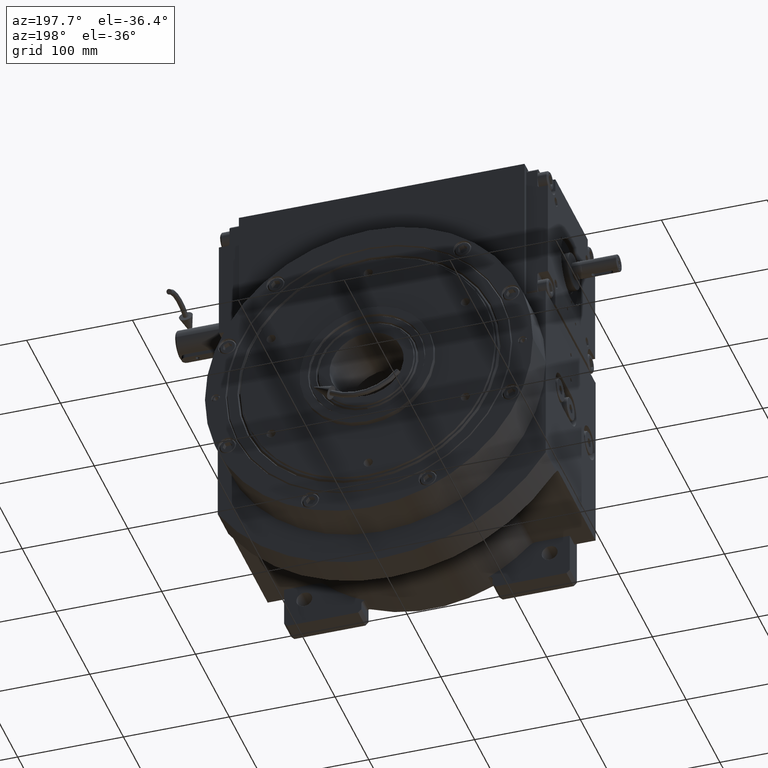
[diagram: clean part render]
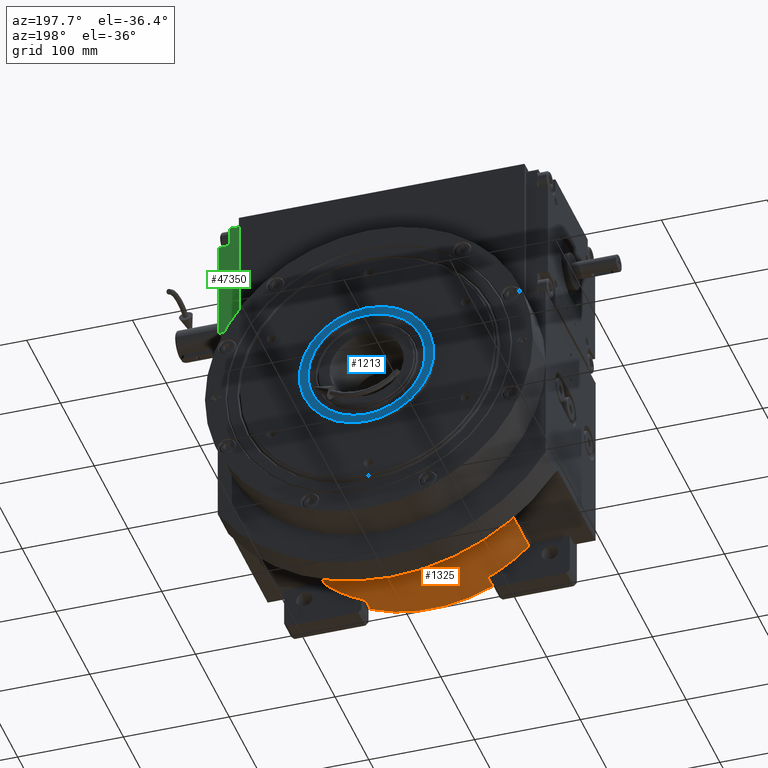
[diagram: same view with three faces highlighted in distinct colors, each labeled with its STEP entity id]
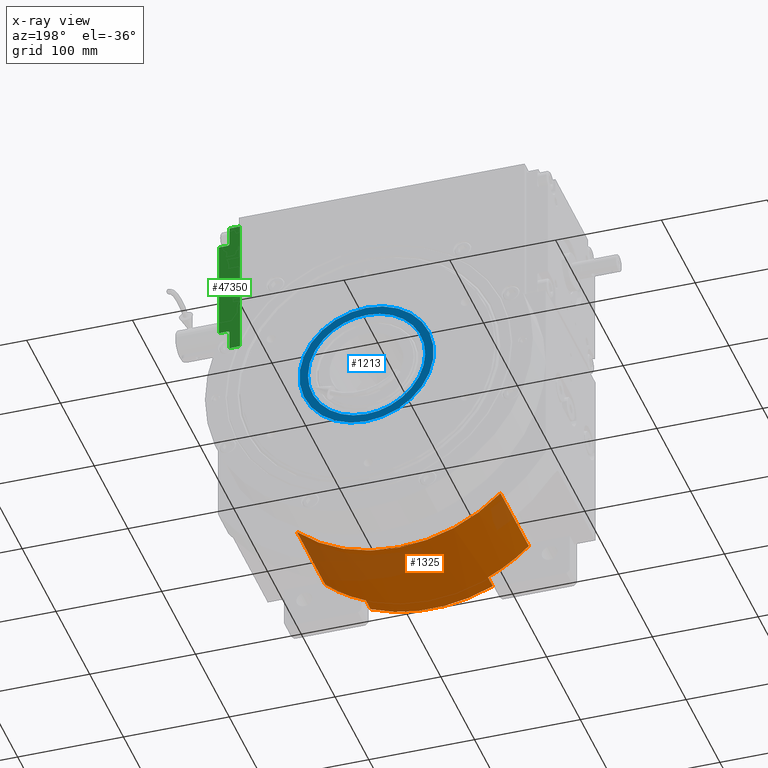
[diagram: x-ray of the same camera — body ghosted, the three highlighted faces saturated]
A machine part, auxiliary view with three faces highlighted in distinct colors.
The next image is the same camera in x-ray (body ghosted, the three faces saturated) — at least one of them is partly hidden behind the body in this view.
Their STEP definitions:

[orange] entity #1325 — the highlighted cylindrical surface (partial cylindrical patch) has radius 138 mm, axis along (0, 1, 0).
#901 = CARTESIAN_POINT ( 'NONE',  ( 57.74468085106380499, -59.00000000000000000, -125.3377510306004012 ) ) ;
#1325 = ADVANCED_FACE ( 'NONE', ( #18345 ), #40439, .T. ) ;
#1531 = VERTEX_POINT ( 'NONE', #27749 ) ;
#1709 = EDGE_CURVE ( 'NONE', #38155, #33868, #60426, .T. ) ;
#3925 = ORIENTED_EDGE ( 'NONE', *, *, #48803, .T. ) ;
#4744 = DIRECTION ( 'NONE',  ( -0.4184397163120575636, 0.000000000000000000, -0.9082445726855100654 ) ) ;
#5033 = EDGE_CURVE ( 'NONE', #38155, #6567, #31467, .T. ) ;
#6348 = DIRECTION ( 'NONE',  ( 0.6978784504689377055, 0.000000000000000000, -0.7162162162162165613 ) ) ;
#6567 = VERTEX_POINT ( 'NONE', #59780 ) ;
#8822 = CIRCLE ( 'NONE', #25646, 138.0000000000000853 ) ;
#9293 = DIRECTION ( 'NONE',  ( -0.4184397163120575636, 0.000000000000000000, -0.9082445726855100654 ) ) ;
#9538 = CARTESIAN_POINT ( 'NONE',  ( -57.74468085106390447, -73.00000000000000000, -125.3377510306004012 ) ) ;
#9870 = AXIS2_PLACEMENT_3D ( 'NONE', #67586, #19801, #9293 ) ;
#10521 = VERTEX_POINT ( 'NONE', #45182 ) ;
#12236 = VECTOR ( 'NONE', #29397, 1000.000000000000000 ) ;
#12359 = AXIS2_PLACEMENT_3D ( 'NONE', #64116, #48243, #4744 ) ;
#13239 = CARTESIAN_POINT ( 'NONE',  ( 57.74468085106380499, -73.00000000000000000, -125.3377510306004012 ) ) ;
#13350 = DIRECTION ( 'NONE',  ( 0.000000000000000000, -1.000000000000000000, 0.000000000000000000 ) ) ;
#13422 = EDGE_CURVE ( 'NONE', #33868, #66414, #40113, .T. ) ;
#14169 = EDGE_CURVE ( 'NONE', #1531, #32342, #8822, .T. ) ;
#15180 = ORIENTED_EDGE ( 'NONE', *, *, #5033, .T. ) ;
#15951 = LINE ( 'NONE', #42610, #64228 ) ;
#16155 = AXIS2_PLACEMENT_3D ( 'NONE', #54780, #53719, #6348 ) ;
#16301 = VERTEX_POINT ( 'NONE', #901 ) ;
#16316 = ORIENTED_EDGE ( 'NONE', *, *, #60955, .F. ) ;
#18345 = FACE_OUTER_BOUND ( 'NONE', #21307, .T. ) ;
#19600 = AXIS2_PLACEMENT_3D ( 'NONE', #39756, #61207, #61898 ) ;
#19801 = DIRECTION ( 'NONE',  ( 0.000000000000000000, -1.000000000000000000, 0.000000000000000000 ) ) ;
#20906 = ORIENTED_EDGE ( 'NONE', *, *, #53263, .T. ) ;
#21205 = CARTESIAN_POINT ( 'NONE',  ( -57.74468085106390447, -59.00000000000000000, -125.3377510306004012 ) ) ;
#21307 = EDGE_LOOP ( 'NONE', ( #20906, #16316, #39199, #37422, #15180, #3925, #42039, #46159 ) ) ;
#25646 = AXIS2_PLACEMENT_3D ( 'NONE', #38299, #28107, #59372 ) ;
#27749 = CARTESIAN_POINT ( 'NONE',  ( -96.30722393658518854, 24.99999992571344976, -98.83796549704690904 ) ) ;
#28107 = DIRECTION ( 'NONE',  ( -6.789570679155330615E-15, -1.000000000000000000, 2.340198913247644897E-14 ) ) ;
#29397 = DIRECTION ( 'NONE',  ( 0.000000000000000000, 1.000000000000000000, 0.000000000000000000 ) ) ;
#31467 = CIRCLE ( 'NONE', #12359, 138.0000000000000000 ) ;
#32342 = VERTEX_POINT ( 'NONE', #59530 ) ;
#33868 = VERTEX_POINT ( 'NONE', #9538 ) ;
#35340 = DIRECTION ( 'NONE',  ( 0.000000000000000000, 1.000000000000000000, 0.000000000000000000 ) ) ;
#37422 = ORIENTED_EDGE ( 'NONE', *, *, #1709, .F. ) ;
#38058 = DIRECTION ( 'NONE',  ( 0.000000000000000000, 1.000000000000000000, 0.000000000000000000 ) ) ;
#38155 = VERTEX_POINT ( 'NONE', #21205 ) ;
#38299 = CARTESIAN_POINT ( 'NONE',  ( -1.421085471520200056E-14, 25.00000000000330047, 8.526512829121199706E-14 ) ) ;
#39199 = ORIENTED_EDGE ( 'NONE', *, *, #13422, .F. ) ;
#39460 = EDGE_CURVE ( 'NONE', #10521, #32342, #15951, .T. ) ;
#39756 = CARTESIAN_POINT ( 'NONE',  ( -2.057655180072804513E-28, -73.00000000000000000, 0.000000000000000000 ) ) ;
#40113 = CIRCLE ( 'NONE', #9870, 138.0000000000000000 ) ;
#40246 = CARTESIAN_POINT ( 'NONE',  ( -96.30722616471349795, -59.00000000000000000, -98.83783783783779597 ) ) ;
#40439 = CYLINDRICAL_SURFACE ( 'NONE', #19600, 138.0000000000000000 ) ;
#42039 = ORIENTED_EDGE ( 'NONE', *, *, #14169, .T. ) ;
#42610 = CARTESIAN_POINT ( 'NONE',  ( 96.30722616471349795, -59.00000000000000000, -98.83783783783789545 ) ) ;
#45182 = CARTESIAN_POINT ( 'NONE',  ( 96.30722616471339848, -59.00000000000000000, -98.83783783783789545 ) ) ;
#45497 = LINE ( 'NONE', #40246, #46845 ) ;
#46159 = ORIENTED_EDGE ( 'NONE', *, *, #39460, .F. ) ;
#46845 = VECTOR ( 'NONE', #35340, 1000.000000000000000 ) ;
#48243 = DIRECTION ( 'NONE',  ( 0.000000000000000000, 1.000000000000000000, 0.000000000000000000 ) ) ;
#48803 = EDGE_CURVE ( 'NONE', #6567, #1531, #45497, .T. ) ;
#50333 = VECTOR ( 'NONE', #13350, 1000.000000000000000 ) ;
#53263 = EDGE_CURVE ( 'NONE', #10521, #16301, #68860, .T. ) ;
#53719 = DIRECTION ( 'NONE',  ( 0.000000000000000000, 1.000000000000000000, 0.000000000000000000 ) ) ;
#54780 = CARTESIAN_POINT ( 'NONE',  ( 1.421085471520199867E-13, -59.00000000000000000, -2.700062395888380201E-13 ) ) ;
#55745 = LINE ( 'NONE', #13239, #12236 ) ;
#59372 = DIRECTION ( 'NONE',  ( -0.6978784504689377055, -1.201735973212917754E-14, -0.7162162162162165613 ) ) ;
#59530 = CARTESIAN_POINT ( 'NONE',  ( 96.30723760260589472, 24.99999990761120117, -98.83797943607669367 ) ) ;
#59780 = CARTESIAN_POINT ( 'NONE',  ( -96.30722616471359743, -59.00000000000000000, -98.83783783783779597 ) ) ;
#60426 = LINE ( 'NONE', #61817, #50333 ) ;
#60955 = EDGE_CURVE ( 'NONE', #66414, #16301, #55745, .T. ) ;
#61207 = DIRECTION ( 'NONE',  ( 0.000000000000000000, 1.000000000000000000, 0.000000000000000000 ) ) ;
#61817 = CARTESIAN_POINT ( 'NONE',  ( -57.74468085106390447, -59.00000000000000000, -125.3377510306004012 ) ) ;
#61898 = DIRECTION ( 'NONE',  ( 0.000000000000000000, 0.000000000000000000, 1.000000000000000000 ) ) ;
#64116 = CARTESIAN_POINT ( 'NONE',  ( 5.542233338928780440E-13, -59.00000000000000000, 9.237055564881300397E-13 ) ) ;
#64228 = VECTOR ( 'NONE', #38058, 1000.000000000000000 ) ;
#66414 = VERTEX_POINT ( 'NONE', #68158 ) ;
#67586 = CARTESIAN_POINT ( 'NONE',  ( 0.000000000000000000, -73.00000000000000000, -1.705302565824239941E-13 ) ) ;
#68158 = CARTESIAN_POINT ( 'NONE',  ( 57.74468085106380499, -73.00000000000000000, -125.3377510306004012 ) ) ;
#68860 = CIRCLE ( 'NONE', #16155, 138.0000000000000853 ) ;

[blue] entity #1213 — the highlighted planar face has unit normal (-0, -1, 0).
#222 = AXIS2_PLACEMENT_3D ( 'NONE', #31164, #43042, #32189 ) ;
#247 = CARTESIAN_POINT ( 'NONE',  ( -49.71447936410482527, 137.5000000000000000, 24.51920318662490317 ) ) ;
#310 = CARTESIAN_POINT ( 'NONE',  ( -49.71477893813901971, 137.4999999999999147, -24.51866969727153034 ) ) ;
#598 = CARTESIAN_POINT ( 'NONE',  ( -54.00781687136672815, 137.4999999999999716, 12.36261859440248223 ) ) ;
#1213 = ADVANCED_FACE ( 'NONE', ( #34491, #55925 ), #7472, .F. ) ;
#1765 = VERTEX_POINT ( 'NONE', #34091 ) ;
#2312 = CARTESIAN_POINT ( 'NONE',  ( 3.628375997638928929, 137.4999999999999147, -55.31313381398919660 ) ) ;
#3010 = CARTESIAN_POINT ( 'NONE',  ( 27.75497598687837097, 137.4999999999999147, -48.08607127958408967 ) ) ;
#3078 = ORIENTED_EDGE ( 'NONE', *, *, #26259, .F. ) ;
#3147 = VERTEX_POINT ( 'NONE', #50846 ) ;
#3215 = DIRECTION ( 'NONE',  ( -1.000000000000000000, -8.710209203205549437E-16, -6.328271240363314972E-15 ) ) ;
#4151 = CARTESIAN_POINT ( 'NONE',  ( 53.62664304321267394, 137.5000000000001137, 14.37822157026970693 ) ) ;
#4400 = CARTESIAN_POINT ( 'NONE',  ( -27.75542257747211394, 137.4999999999998863, -48.08588635518135845 ) ) ;
#4497 = CARTESIAN_POINT ( 'NONE',  ( -53.64091891798686618, 137.4999999999999716, 13.90860157112367013 ) ) ;
#4842 = CARTESIAN_POINT ( 'NONE',  ( -3.628357895716744164, 137.5000000000001421, 55.31313501169095304 ) ) ;
#5188 = CARTESIAN_POINT ( 'NONE',  ( 48.00825865112236812, 137.5000000000001421, 27.71108241476838430 ) ) ;
#5532 = CARTESIAN_POINT ( 'NONE',  ( -27.75496495380834361, 137.5000000000001137, 48.08607772249040835 ) ) ;
#5601 = CARTESIAN_POINT ( 'NONE',  ( -54.42446631308201432, 137.4999999999998863, -10.36125648274953193 ) ) ;
#5617 = EDGE_CURVE ( 'NONE', #23140, #60522, #24716, .T. ) ;
#6028 = EDGE_LOOP ( 'NONE', ( #3078, #38611 ) ) ;
#6667 = CARTESIAN_POINT ( 'NONE',  ( -54.50717790105813521, 137.4999999999998863, -9.917133072142101824 ) ) ;
#7142 = CARTESIAN_POINT ( 'NONE',  ( 1.702895640115161849E-13, 137.5000000000000000, -2.900457651833202277E-13 ) ) ;
#7472 = PLANE ( 'NONE',  #58665 ) ;
#7964 = CARTESIAN_POINT ( 'NONE',  ( 9.025197798292850848, 137.4999999999998863, -54.69193561486415689 ) ) ;
#8322 = CARTESIAN_POINT ( 'NONE',  ( 49.71448179410049306, 137.5000000000000284, -24.51919822925671610 ) ) ;
#8659 = CARTESIAN_POINT ( 'NONE',  ( 50.48945352261363695, 137.5000000000000284, -22.88022166407546010 ) ) ;
#8869 = B_SPLINE_CURVE_WITH_KNOTS ( 'NONE', 3,
 ( #67650, #29726, #2312, #45495, #7964, #56420, #9000, #61348, #3010, #66950, #67998, #19516, #61699, #34981, #14263, #8322, #8659, #51123, #35674, #24438, #19164, #46528, #57101, #30416, #51814, #19859, #61009 ),
 .UNSPECIFIED., .F., .F.,
 ( 4, 2, 2, 2, 2, 2, 2, 2, 2, 1, 1, 1, 2, 2, 4 ),
 ( 0.5000001088899543866, 0.5312501020843323207, 0.5625000952787101438, 0.6250000816674659010, 0.6875000680562216582, 0.7500000544449774154, 0.8125000408337330615, 0.8437500340281109956, 0.8750000272224889297, 0.9062500204168667528, 0.9218750170140557199, 0.9296875153126502589, 0.9335937644619474174, 0.9375000136112446869, 1.000000000000000000 ),
 .UNSPECIFIED. ) ;
#8995 = CARTESIAN_POINT ( 'NONE',  ( -44.04486251158711951, 137.4999999999999432, -33.80308831572948947 ) ) ;
#9000 = CARTESIAN_POINT ( 'NONE',  ( 17.84122218034780971, 137.4999999999999147, -52.57634488780664128 ) ) ;
#10131 = CARTESIAN_POINT ( 'NONE',  ( 7.240547435327146175, 137.5000000000000853, 55.04692884060045088 ) ) ;
#10472 = CARTESIAN_POINT ( 'NONE',  ( -24.56191109246028503, 137.5000000000001421, 49.79285096909188724 ) ) ;
#11683 = DIRECTION ( 'NONE',  ( 1.000000000000000000, 8.741913579725642299E-16, 6.272322993453074118E-15 ) ) ;
#13525 = EDGE_LOOP ( 'NONE', ( #26154, #53591, #68802 ) ) ;
#13553 = AXIS2_PLACEMENT_3D ( 'NONE', #27106, #43253, #11683 ) ;
#13919 = CARTESIAN_POINT ( 'NONE',  ( -7.240530234497567719, 137.4999999999998863, -55.04693115882573551 ) ) ;
#14263 = CARTESIAN_POINT ( 'NONE',  ( 48.00795346572976285, 137.5000000000000284, -27.71161529101094345 ) ) ;
#15065 = CARTESIAN_POINT ( 'NONE',  ( -1.818429028588070429, 137.5000000000001137, 55.40183371729972350 ) ) ;
#15738 = CARTESIAN_POINT ( 'NONE',  ( 50.48919882109855450, 137.5000000000000853, 22.88095610065697727 ) ) ;
#16157 = CARTESIAN_POINT ( 'NONE',  ( -54.62713457614277957, 137.4999999999999432, -9.250297209391945330 ) ) ;
#16485 = CARTESIAN_POINT ( 'NONE',  ( -52.57591822518406843, 137.4999999999999147, -17.84333457577970350 ) ) ;
#19162 = EDGE_CURVE ( 'NONE', #3147, #67298, #22602, .T. ) ;
#19164 = CARTESIAN_POINT ( 'NONE',  ( 54.00781747661097398, 137.5000000000000568, -12.36261594187621959 ) ) ;
#19516 = CARTESIAN_POINT ( 'NONE',  ( 41.74770190502044898, 137.4999999999999432, -36.60236605458666048 ) ) ;
#19853 = CARTESIAN_POINT ( 'NONE',  ( -36.60387710816653595, 137.4999999999998863, -41.74643778925095461 ) ) ;
#19859 = CARTESIAN_POINT ( 'NONE',  ( 55.39785984290545429, 137.5000000000001137, -3.657470325549919465 ) ) ;
#19958 = CARTESIAN_POINT ( 'NONE',  ( 55.39993398753517795, 137.5000000000000853, 1.828552991367127900 ) ) ;
#21004 = CARTESIAN_POINT ( 'NONE',  ( -48.00795032109144955, 137.5000000000000284, 27.71162076213339986 ) ) ;
#21341 = CARTESIAN_POINT ( 'NONE',  ( -44.04365571943501578, 137.5000000000000568, 33.80477815043025913 ) ) ;
#21687 = CARTESIAN_POINT ( 'NONE',  ( -7.231177290619913656, 137.5000000000000568, 54.95829804417514453 ) ) ;
#22602 = B_SPLINE_CURVE_WITH_KNOTS ( 'NONE', 3,
 ( #37897, #33356, #50767, #54752, #16157, #6667, #5601, #58990, #49458, #16485, #48407, #310, #64621, #59332, #8995, #36377, #19853, #46519, #4400, #31109, #56754, #40571, #13919, #34972, #24783 ),
 .UNSPECIFIED., .F., .F.,
 ( 4, 1, 1, 1, 2, 2, 2, 2, 2, 2, 2, 2, 2, 4 ),
 ( 0.000000000000000000, 0.03125000680562196181, 0.04687501020843295313, 0.05468751190983844185, 0.05859376276054118621, 0.06250001361124395138, 0.1250000272224882081, 0.1562500340281103572, 0.1875000408337325064, 0.2500000544449769158, 0.3125000680562212696, 0.3750000816674656234, 0.4375000952787100328, 0.5000001088899543866 ),
 .UNSPECIFIED. ) ;
#23140 = VERTEX_POINT ( 'NONE', #24303 ) ;
#24303 = CARTESIAN_POINT ( 'NONE',  ( 63.50000000000000000, 137.5000000000000000, 1.143916276379464588E-13 ) ) ;
#24438 = CARTESIAN_POINT ( 'NONE',  ( 53.64091967998441390, 137.5000000000000284, -13.90859860657864466 ) ) ;
#24716 = CIRCLE ( 'NONE', #13553, 63.50000000000000000 ) ;
#24783 = CARTESIAN_POINT ( 'NONE',  ( 8.118262214958745492E-10, 137.5000000000000568, -55.40184876788287482 ) ) ;
#24881 = CARTESIAN_POINT ( 'NONE',  ( 55.26540672301853618, 137.5000000000000568, 4.550558588610561728 ) ) ;
#25564 = CARTESIAN_POINT ( 'NONE',  ( 52.57591946540060235, 137.5000000000001137, 17.84333077393759126 ) ) ;
#25916 = CARTESIAN_POINT ( 'NONE',  ( -52.79566113623379664, 137.5000000000000000, 16.96487068480071159 ) ) ;
#26154 = ORIENTED_EDGE ( 'NONE', *, *, #19162, .T. ) ;
#26259 = EDGE_CURVE ( 'NONE', #23140, #60522, #46243, .T. ) ;
#26270 = CARTESIAN_POINT ( 'NONE',  ( -55.04307220141742363, 137.4999999999999716, 7.259049885477681485 ) ) ;
#26941 = CARTESIAN_POINT ( 'NONE',  ( 27.75543348264031351, 137.5000000000001421, 48.08587999776101185 ) ) ;
#27106 = CARTESIAN_POINT ( 'NONE',  ( 1.734445920220515500E-13, 137.5000000000000000, -2.864930515045197772E-13 ) ) ;
#27289 = CARTESIAN_POINT ( 'NONE',  ( 47.07537269231540478, 137.5000000000001137, 29.26696001001480596 ) ) ;
#28153 = CARTESIAN_POINT ( 'NONE',  ( 8.118262214958745492E-10, 137.5000000000000568, -55.40184876788287482 ) ) ;
#29726 = CARTESIAN_POINT ( 'NONE',  ( 1.818447582202682655, 137.4999999999999147, -55.40183309923884991 ) ) ;
#30416 = CARTESIAN_POINT ( 'NONE',  ( 54.29346688806710119, 137.5000000000000284, -11.02633973190701333 ) ) ;
#30518 = CARTESIAN_POINT ( 'NONE',  ( 54.62713491138917732, 137.5000000000001137, 9.250295221252123667 ) ) ;
#30872 = CARTESIAN_POINT ( 'NONE',  ( 54.50717828839032109, 137.5000000000000568, 9.917130942877028232 ) ) ;
#31109 = CARTESIAN_POINT ( 'NONE',  ( -24.56300829642062666, 137.4999999999998863, -49.79232203002614909 ) ) ;
#31164 = CARTESIAN_POINT ( 'NONE',  ( 1.734445920220531151E-13, 137.5000000000000000, -2.935984788621207286E-13 ) ) ;
#31908 = CARTESIAN_POINT ( 'NONE',  ( -33.80475580821478587, 137.5000000000001137, 44.04363378032424947 ) ) ;
#32189 = DIRECTION ( 'NONE',  ( 1.000000000000000000, 8.741913579725642299E-16, 6.384219487273558193E-15 ) ) ;
#32235 = CARTESIAN_POINT ( 'NONE',  ( -54.29346640797777468, 137.5000000000000284, 11.02634209519381869 ) ) ;
#33356 = CARTESIAN_POINT ( 'NONE',  ( -55.39993398710150529, 137.4999999999999432, -1.828553389551423880 ) ) ;
#34091 = CARTESIAN_POINT ( 'NONE',  ( 55.40191169092590684, 137.5000032402881800, -3.669737571491428942E-07 ) ) ;
#34491 = FACE_BOUND ( 'NONE', #13525, .T. ) ;
#34972 = CARTESIAN_POINT ( 'NONE',  ( -3.636896746055633844, 137.4999999999998863, -55.40177173643561304 ) ) ;
#34981 = CARTESIAN_POINT ( 'NONE',  ( 47.07594126219621700, 137.4999999999999432, -29.26615558819080931 ) ) ;
#35674 = CARTESIAN_POINT ( 'NONE',  ( 52.79566226030760134, 137.5000000000000853, -16.96486711170939543 ) ) ;
#36377 = CARTESIAN_POINT ( 'NONE',  ( -41.74665140230730742, 137.4999999999999147, -36.60326996764378293 ) ) ;
#36477 = CARTESIAN_POINT ( 'NONE',  ( -17.84120783795442833, 137.5000000000000853, 52.57634982378086619 ) ) ;
#36796 = CARTESIAN_POINT ( 'NONE',  ( 44.04486727230076326, 137.5000000000000853, 33.80308202476079060 ) ) ;
#37145 = CARTESIAN_POINT ( 'NONE',  ( -55.40191169092599921, 137.5000032402881800, 3.669731794776569674E-07 ) ) ;
#37897 = CARTESIAN_POINT ( 'NONE',  ( -55.40191169092599921, 137.5000032402881800, 3.669731794776569674E-07 ) ) ;
#38611 = ORIENTED_EDGE ( 'NONE', *, *, #5617, .T. ) ;
#40571 = CARTESIAN_POINT ( 'NONE',  ( -14.37638764399491187, 137.4999999999998863, -53.62765072370272890 ) ) ;
#41378 = CARTESIAN_POINT ( 'NONE',  ( 54.42446673633173759, 137.5000000000001137, 10.36125425958931956 ) ) ;
#42400 = CARTESIAN_POINT ( 'NONE',  ( -55.39785984202023883, 137.4999999999999147, 3.657471121918372869 ) ) ;
#42743 = CARTESIAN_POINT ( 'NONE',  ( -36.60280924529033797, 137.5000000000000568, 41.74738558691572621 ) ) ;
#43042 = DIRECTION ( 'NONE',  ( -1.054711873393911138E-15, -1.000000000000000000, 2.109423746787782438E-15 ) ) ;
#43092 = CARTESIAN_POINT ( 'NONE',  ( -51.88007696617093956, 137.5000000000000000, 19.52333534264048964 ) ) ;
#43253 = DIRECTION ( 'NONE',  ( 1.054711873393911138E-15, 1.000000000000000000, -2.109423746787782438E-15 ) ) ;
#45495 = CARTESIAN_POINT ( 'NONE',  ( 7.231194496602200594, 137.4999999999998863, -54.95829576446688947 ) ) ;
#46243 = CIRCLE ( 'NONE', #222, 63.50000000000000000 ) ;
#46519 = CARTESIAN_POINT ( 'NONE',  ( -33.80435057679954269, 137.4999999999998863, -44.04381691316305591 ) ) ;
#46528 = CARTESIAN_POINT ( 'NONE',  ( 54.15311705090555705, 137.5000000000000568, -11.69622728297435899 ) ) ;
#47668 = CARTESIAN_POINT ( 'NONE',  ( 17.84017549914374001, 137.5000000000001705, 52.57686761844481538 ) ) ;
#47998 = CARTESIAN_POINT ( 'NONE',  ( 36.60388478358039777, 137.5000000000001421, 41.74643098782399875 ) ) ;
#48343 = CARTESIAN_POINT ( 'NONE',  ( 24.56302047218656881, 137.5000000000001705, 49.79231598333829822 ) ) ;
#48407 = CARTESIAN_POINT ( 'NONE',  ( -50.48919671453105451, 137.4999999999998863, -22.88096078229816399 ) ) ;
#48703 = CARTESIAN_POINT ( 'NONE',  ( -47.07593772592337444, 137.5000000000000284, 29.26616129807050370 ) ) ;
#49458 = CARTESIAN_POINT ( 'NONE',  ( -53.62664227582148158, 137.4999999999999432, -14.37822463608635282 ) ) ;
#50241 = CARTESIAN_POINT ( 'NONE',  ( 55.40191169092590684, 137.5000032402881800, -3.669737571491428942E-07 ) ) ;
#50767 = CARTESIAN_POINT ( 'NONE',  ( -55.26540666464023843, 137.4999999999999432, -4.550559575029177850 ) ) ;
#50846 = CARTESIAN_POINT ( 'NONE',  ( -55.40191169092599921, 137.5000032402881800, 3.669731794776569674E-07 ) ) ;
#50998 = EDGE_CURVE ( 'NONE', #67298, #1765, #8869, .T. ) ;
#51123 = CARTESIAN_POINT ( 'NONE',  ( 51.88007848385829845, 137.5000000000000568, -19.52333127449428929 ) ) ;
#51785 = EDGE_CURVE ( 'NONE', #1765, #3147, #60737, .T. ) ;
#51814 = CARTESIAN_POINT ( 'NONE',  ( 55.04307235594881575, 137.5000000000000284, -7.259048316929892941 ) ) ;
#52257 = CARTESIAN_POINT ( 'NONE',  ( 54.38208206893231278, 137.5000000000000568, 10.58138340846234549 ) ) ;
#53300 = CARTESIAN_POINT ( 'NONE',  ( -50.48945140609717441, 137.5000000000000284, 22.88022636868926796 ) ) ;
#53591 = ORIENTED_EDGE ( 'NONE', *, *, #50998, .T. ) ;
#53623 = CARTESIAN_POINT ( 'NONE',  ( -9.025180943282315127, 137.5000000000000853, 54.69193841505430242 ) ) ;
#54752 = CARTESIAN_POINT ( 'NONE',  ( -54.87825853651719399, 137.4999999999999147, -7.689791635101811629 ) ) ;
#55925 = FACE_OUTER_BOUND ( 'NONE', #6028, .T. ) ;
#56420 = CARTESIAN_POINT ( 'NONE',  ( 14.37497086597332796, 137.4999999999998863, -53.62802426557689728 ) ) ;
#56754 = CARTESIAN_POINT ( 'NONE',  ( -17.84016132109775654, 137.4999999999998863, -52.57687248730382379 ) ) ;
#57101 = CARTESIAN_POINT ( 'NONE',  ( 54.24732958075848899, 137.5000000000000284, -11.25111825265231325 ) ) ;
#57198 = CARTESIAN_POINT ( 'NONE',  ( 54.87825876276327364, 137.5000000000000853, 7.689789978232029810 ) ) ;
#57900 = CARTESIAN_POINT ( 'NONE',  ( -41.74769622294621740, 137.5000000000000568, 36.60237261134248143 ) ) ;
#58241 = CARTESIAN_POINT ( 'NONE',  ( 49.71478136786305413, 137.5000000000001137, 24.51866474037517918 ) ) ;
#58582 = CARTESIAN_POINT ( 'NONE',  ( -54.24732907765123002, 137.4999999999999716, 11.25112067917294389 ) ) ;
#58665 = AXIS2_PLACEMENT_3D ( 'NONE', #7142, #66817, #3215 ) ;
#58990 = CARTESIAN_POINT ( 'NONE',  ( -54.38208162333553020, 137.4999999999999432, -10.58138569747463720 ) ) ;
#59332 = CARTESIAN_POINT ( 'NONE',  ( -47.07536913282243063, 137.4999999999999432, -29.26696575541705059 ) ) ;
#60522 = VERTEX_POINT ( 'NONE', #68100 ) ;
#60737 = B_SPLINE_CURVE_WITH_KNOTS ( 'NONE', 3,
 ( #50241, #19958, #24881, #57198, #30518, #30872, #41378, #52257, #4151, #25564, #15738, #58241, #5188, #27289, #36796, #69131, #47998, #63865, #26941, #48343, #47668, #68799, #10131, #69467, #15065, #4842, #21687, #53623, #63525, #36477, #10472, #5532, #31908, #42743, #57900, #21341, #48703, #21004, #247, #53300, #43092, #25916, #4497, #598, #64214, #58582, #32235, #26270, #42400, #37145 ),
 .UNSPECIFIED., .F., .F.,
 ( 4, 1, 1, 1, 2, 2, 2, 2, 2, 2, 2, 2, 2, 2, 2, 2, 2, 2, 2, 2, 2, 2, 1, 1, 1, 2, 2, 4 ),
 ( 0.000000000000000000, 0.03124999999999993061, 0.04687499999999989592, 0.05468749999999988204, 0.05859374999999985428, 0.06249999999999982653, 0.1249999999999996669, 0.1562499999999996114, 0.1874999999999995282, 0.2499999999999995559, 0.3124999999999995004, 0.3749999999999995004, 0.4374999999999994449, 0.4999999999999994449, 0.5312499999999993339, 0.5624999999999994449, 0.6249999999999993339, 0.6874999999999993339, 0.7499999999999994449, 0.8124999999999995559, 0.8437499999999994449, 0.8749999999999993339, 0.9062499999999994449, 0.9218749999999995559, 0.9296874999999994449, 0.9335937499999994449, 0.9374999999999994449, 1.000000000000000000 ),
 .UNSPECIFIED. ) ;
#61009 = CARTESIAN_POINT ( 'NONE',  ( 55.40191169092590684, 137.5000032402881800, -3.669737571491428942E-07 ) ) ;
#61348 = CARTESIAN_POINT ( 'NONE',  ( 24.56192309548052677, 137.4999999999999147, -49.79284499364177918 ) ) ;
#61699 = CARTESIAN_POINT ( 'NONE',  ( 44.04366053355094124, 137.4999999999999432, -33.80477177863863147 ) ) ;
#63525 = CARTESIAN_POINT ( 'NONE',  ( -14.37495564291080719, 137.5000000000001137, 53.62802839652748332 ) ) ;
#63865 = CARTESIAN_POINT ( 'NONE',  ( 33.80435943165134915, 137.5000000000001705, 44.04381006635998830 ) ) ;
#64214 = CARTESIAN_POINT ( 'NONE',  ( -54.15311650763732843, 137.5000000000000284, 11.69622980011854985 ) ) ;
#64621 = CARTESIAN_POINT ( 'NONE',  ( -48.00825550633951622, 137.4999999999998863, -27.71108788615265794 ) ) ;
#66817 = DIRECTION ( 'NONE',  ( 8.710209203205416316E-16, -1.000000000000000000, 2.109423746787795455E-15 ) ) ;
#66950 = CARTESIAN_POINT ( 'NONE',  ( 33.80476453798745951, 137.4999999999998863, -44.04362701778363487 ) ) ;
#67298 = VERTEX_POINT ( 'NONE', #28153 ) ;
#67650 = CARTESIAN_POINT ( 'NONE',  ( 8.118262214958745492E-10, 137.5000000000000568, -55.40184876788287482 ) ) ;
#67998 = CARTESIAN_POINT ( 'NONE',  ( 36.60281700865175480, 137.4999999999999432, -41.74737869790619271 ) ) ;
#68100 = CARTESIAN_POINT ( 'NONE',  ( -63.50000000000000000, 137.5000000000000000, -6.970753270627809676E-13 ) ) ;
#68799 = CARTESIAN_POINT ( 'NONE',  ( 14.37640307813230045, 137.5000000000001421, 53.62764655101729971 ) ) ;
#68802 = ORIENTED_EDGE ( 'NONE', *, *, #51785, .T. ) ;
#69131 = CARTESIAN_POINT ( 'NONE',  ( 41.74665716680515004, 137.5000000000001137, 36.60326332812782368 ) ) ;
#69467 = CARTESIAN_POINT ( 'NONE',  ( 3.636915081829247054, 137.5000000000001421, 55.40177049967878986 ) ) ;

[green] entity #47350 — the highlighted planar face has unit normal (-0, 1, 0).
#259 = EDGE_LOOP ( 'NONE', ( #1083, #63559, #29965, #7770, #35064, #39001, #41115, #55704, #3322, #51749 ) ) ;
#1083 = ORIENTED_EDGE ( 'NONE', *, *, #17578, .F. ) ;
#1431 = AXIS2_PLACEMENT_3D ( 'NONE', #35421, #3444, #43081 ) ;
#2355 = EDGE_CURVE ( 'NONE', #64088, #2727, #52140, .T. ) ;
#2708 = EDGE_CURVE ( 'NONE', #40392, #65713, #67889, .T. ) ;
#2727 = VERTEX_POINT ( 'NONE', #15205 ) ;
#3322 = ORIENTED_EDGE ( 'NONE', *, *, #2355, .F. ) ;
#3444 = DIRECTION ( 'NONE',  ( 2.342570581959080616E-14, -1.110223024629687314E-16, 1.000000000000000000 ) ) ;
#4821 = LINE ( 'NONE', #32918, #17960 ) ;
#6666 = CARTESIAN_POINT ( 'NONE',  ( 66.99999999999691624, -1.054711873393898713E-12, -69.99999999999795364 ) ) ;
#6886 = AXIS2_PLACEMENT_3D ( 'NONE', #49250, #44666, #43646 ) ;
#7770 = ORIENTED_EDGE ( 'NONE', *, *, #66874, .T. ) ;
#8185 = VERTEX_POINT ( 'NONE', #40773 ) ;
#11019 = VECTOR ( 'NONE', #41868, 1000.000000000000000 ) ;
#11763 = CARTESIAN_POINT ( 'NONE',  ( 66.99999999999894840, -10.00000000000106404, -69.99999999999795364 ) ) ;
#14678 = LINE ( 'NONE', #68061, #36801 ) ;
#15205 = CARTESIAN_POINT ( 'NONE',  ( -50.00000000000208189, -9.999999999998953726, -70.00000000000075318 ) ) ;
#16110 = CARTESIAN_POINT ( 'NONE',  ( 66.99999999999894840, -10.00000000000106404, -69.99999999999795364 ) ) ;
#17578 = EDGE_CURVE ( 'NONE', #8185, #64697, #4821, .T. ) ;
#17960 = VECTOR ( 'NONE', #32208, 1000.000000000000000 ) ;
#18719 = DIRECTION ( 'NONE',  ( 2.342570581959082509E-14, 1.110223024618816071E-16, -1.000000000000000000 ) ) ;
#18727 = VECTOR ( 'NONE', #22808, 1000.000000000000000 ) ;
#21021 = DIRECTION ( 'NONE',  ( -1.000000000000000000, 2.320366121466579378E-14, -2.342570581959082194E-14 ) ) ;
#21499 = VECTOR ( 'NONE', #21021, 1000.000000000000000 ) ;
#21631 = CARTESIAN_POINT ( 'NONE',  ( -67.00000000000153477, 2.109423746787797427E-12, -70.00000000000100897 ) ) ;
#22808 = DIRECTION ( 'NONE',  ( 2.320366121466571174E-14, -1.000000000000000000, 1.110223024626209423E-16 ) ) ;
#25014 = CARTESIAN_POINT ( 'NONE',  ( 47.99999999999896261, -20.00000000000104450, -69.99999999999820943 ) ) ;
#25025 = FACE_OUTER_BOUND ( 'NONE', #259, .T. ) ;
#25419 = EDGE_CURVE ( 'NONE', #63515, #2727, #58462, .T. ) ;
#29273 = CARTESIAN_POINT ( 'NONE',  ( 69.99999999999693046, -1.054711873393898713E-12, -69.99999999999795364 ) ) ;
#29965 = ORIENTED_EDGE ( 'NONE', *, *, #30000, .T. ) ;
#30000 = EDGE_CURVE ( 'NONE', #47175, #67264, #32598, .T. ) ;
#31085 = LINE ( 'NONE', #35641, #35296 ) ;
#31784 = DIRECTION ( 'NONE',  ( 1.000000000000000000, -2.320366121466579378E-14, 2.342570581959082194E-14 ) ) ;
#32208 = DIRECTION ( 'NONE',  ( -1.000000000000000000, 2.320366121466579378E-14, -2.342570581959082194E-14 ) ) ;
#32564 = VERTEX_POINT ( 'NONE', #58658 ) ;
#32598 = LINE ( 'NONE', #16110, #21499 ) ;
#32752 = CARTESIAN_POINT ( 'NONE',  ( 49.99999999999896261, -10.00000000000106404, -69.99999999999873523 ) ) ;
#32918 = CARTESIAN_POINT ( 'NONE',  ( 66.99999999999691624, -1.054711873393898713E-12, -69.99999999999795364 ) ) ;
#34552 = AXIS2_PLACEMENT_3D ( 'NONE', #29273, #18719, #46082 ) ;
#34991 = VECTOR ( 'NONE', #40563, 1000.000000000000000 ) ;
#35064 = ORIENTED_EDGE ( 'NONE', *, *, #2708, .F. ) ;
#35296 = VECTOR ( 'NONE', #52135, 1000.000000000000000 ) ;
#35421 = CARTESIAN_POINT ( 'NONE',  ( 49.99999999999896261, -12.00000000000106581, -69.99999999999873523 ) ) ;
#35641 = CARTESIAN_POINT ( 'NONE',  ( -48.00000000000104450, -19.99999999999893419, -70.00000000000075318 ) ) ;
#35657 = LINE ( 'NONE', #45131, #34991 ) ;
#35829 = VECTOR ( 'NONE', #31784, 1000.000000000000000 ) ;
#36801 = VECTOR ( 'NONE', #40651, 1000.000000000000000 ) ;
#39001 = ORIENTED_EDGE ( 'NONE', *, *, #65481, .T. ) ;
#40392 = VERTEX_POINT ( 'NONE', #57600 ) ;
#40563 = DIRECTION ( 'NONE',  ( -1.000000000000000000, 2.320366121466579378E-14, -2.342570581959082194E-14 ) ) ;
#40651 = DIRECTION ( 'NONE',  ( 2.320366121466571174E-14, -1.000000000000000000, 1.110223024626209423E-16 ) ) ;
#40773 = CARTESIAN_POINT ( 'NONE',  ( 66.99999999999691624, -1.054711873393898713E-12, -69.99999999999795364 ) ) ;
#41115 = ORIENTED_EDGE ( 'NONE', *, *, #54120, .T. ) ;
#41868 = DIRECTION ( 'NONE',  ( -2.320366121466571174E-14, 1.000000000000000000, -1.110223024626209423E-16 ) ) ;
#43081 = DIRECTION ( 'NONE',  ( -2.428612866367529932E-14, 1.000000000000000000, 0.000000000000000000 ) ) ;
#43646 = DIRECTION ( 'NONE',  ( 1.000000000000000000, -2.341876692568687369E-14, 2.081668171172166620E-14 ) ) ;
#44666 = DIRECTION ( 'NONE',  ( 2.342570581959080616E-14, -1.110223024629687314E-16, 1.000000000000000000 ) ) ;
#45131 = CARTESIAN_POINT ( 'NONE',  ( 47.99999999999896261, -20.00000000000104450, -69.99999999999820943 ) ) ;
#46082 = DIRECTION ( 'NONE',  ( -1.000000000000000000, 2.320366121466579378E-14, -2.342570581959082194E-14 ) ) ;
#47175 = VERTEX_POINT ( 'NONE', #11763 ) ;
#47350 = ADVANCED_FACE ( 'NONE', ( #25025 ), #67198, .T. ) ;
#47697 = CARTESIAN_POINT ( 'NONE',  ( -67.00000000000153477, -9.999999999997900346, -70.00000000000100897 ) ) ;
#49250 = CARTESIAN_POINT ( 'NONE',  ( -50.00000000000208189, -11.99999999999895550, -70.00000000000075318 ) ) ;
#49468 = EDGE_CURVE ( 'NONE', #64697, #64088, #14678, .T. ) ;
#51749 = ORIENTED_EDGE ( 'NONE', *, *, #49468, .F. ) ;
#52135 = DIRECTION ( 'NONE',  ( -2.320366121466571174E-14, 1.000000000000000000, -1.110223024626209423E-16 ) ) ;
#52140 = LINE ( 'NONE', #58467, #35829 ) ;
#54120 = EDGE_CURVE ( 'NONE', #32564, #63515, #31085, .T. ) ;
#54219 = CARTESIAN_POINT ( 'NONE',  ( 47.99999999999896261, -12.00000000000106581, -69.99999999999820943 ) ) ;
#54751 = LINE ( 'NONE', #6666, #18727 ) ;
#55586 = CARTESIAN_POINT ( 'NONE',  ( -48.00000000000208189, -11.99999999999895550, -70.00000000000075318 ) ) ;
#55704 = ORIENTED_EDGE ( 'NONE', *, *, #25419, .T. ) ;
#56674 = EDGE_CURVE ( 'NONE', #8185, #47175, #54751, .T. ) ;
#57600 = CARTESIAN_POINT ( 'NONE',  ( 47.99999999999896261, -20.00000000000104450, -69.99999999999820943 ) ) ;
#58462 = CIRCLE ( 'NONE', #6886, 2.000000000000001776 ) ;
#58467 = CARTESIAN_POINT ( 'NONE',  ( -67.00000000000153477, -9.999999999997900346, -70.00000000000100897 ) ) ;
#58658 = CARTESIAN_POINT ( 'NONE',  ( -48.00000000000104450, -19.99999999999893419, -70.00000000000075318 ) ) ;
#63515 = VERTEX_POINT ( 'NONE', #55586 ) ;
#63559 = ORIENTED_EDGE ( 'NONE', *, *, #56674, .T. ) ;
#64088 = VERTEX_POINT ( 'NONE', #47697 ) ;
#64697 = VERTEX_POINT ( 'NONE', #21631 ) ;
#65448 = CIRCLE ( 'NONE', #1431, 2.000000000000000000 ) ;
#65481 = EDGE_CURVE ( 'NONE', #40392, #32564, #35657, .T. ) ;
#65713 = VERTEX_POINT ( 'NONE', #54219 ) ;
#66874 = EDGE_CURVE ( 'NONE', #67264, #65713, #65448, .T. ) ;
#67198 = PLANE ( 'NONE',  #34552 ) ;
#67264 = VERTEX_POINT ( 'NONE', #32752 ) ;
#67889 = LINE ( 'NONE', #25014, #11019 ) ;
#68061 = CARTESIAN_POINT ( 'NONE',  ( -67.00000000000153477, 2.109423746787797427E-12, -70.00000000000100897 ) ) ;